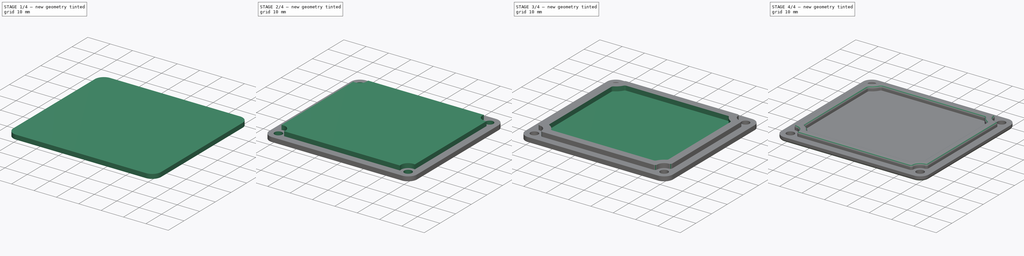
[diagram: build sequence overview — one tinted view per stage of 4, left to right]
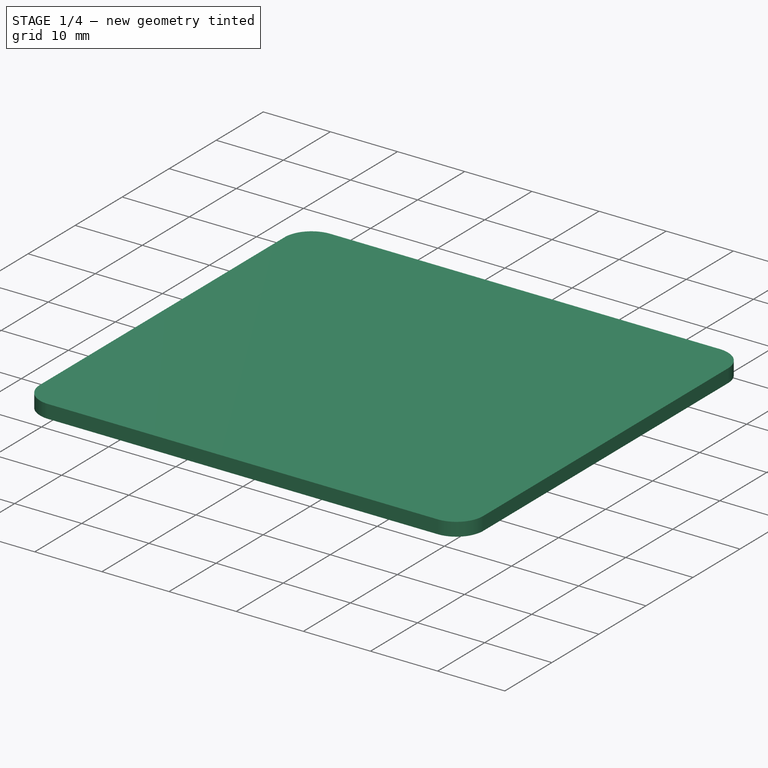
[diagram: stage 1 of 4 — iso view after this stage's code; geometry added in this stage tinted green]
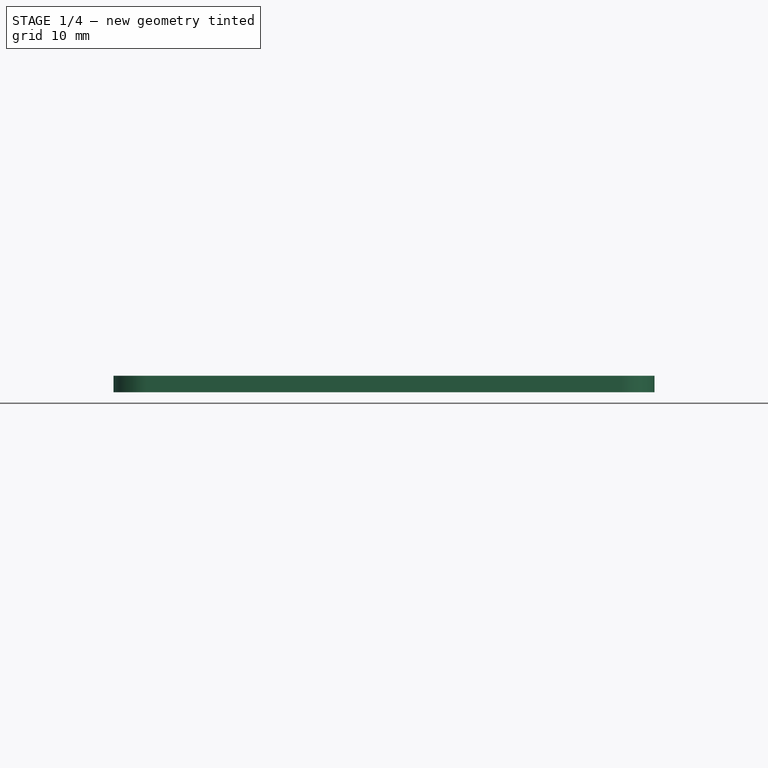
[diagram: stage 1 of 4 — front view after this stage's code; geometry added in this stage tinted green]
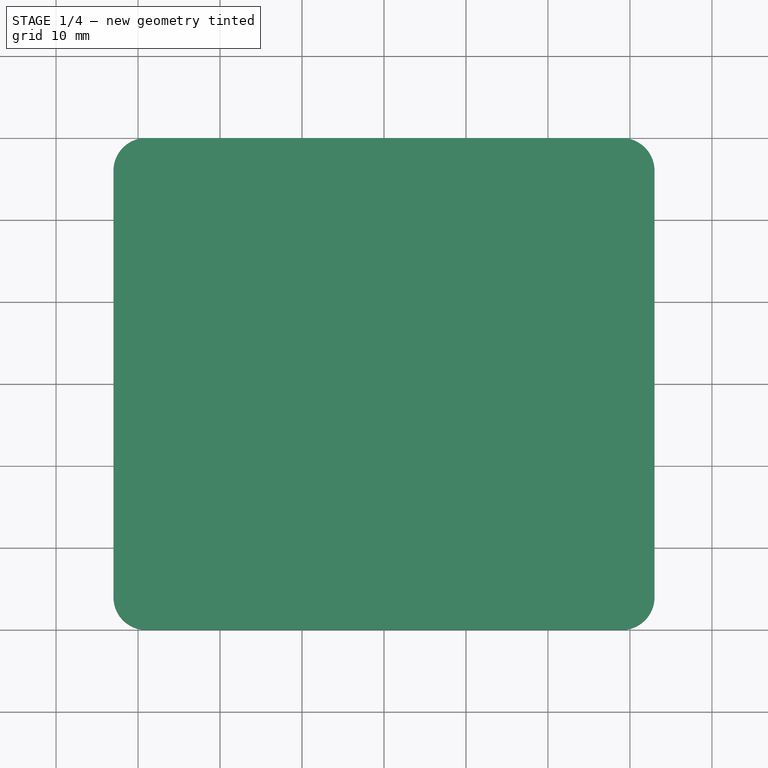
[diagram: stage 1 of 4 — top view after this stage's code; geometry added in this stage tinted green]
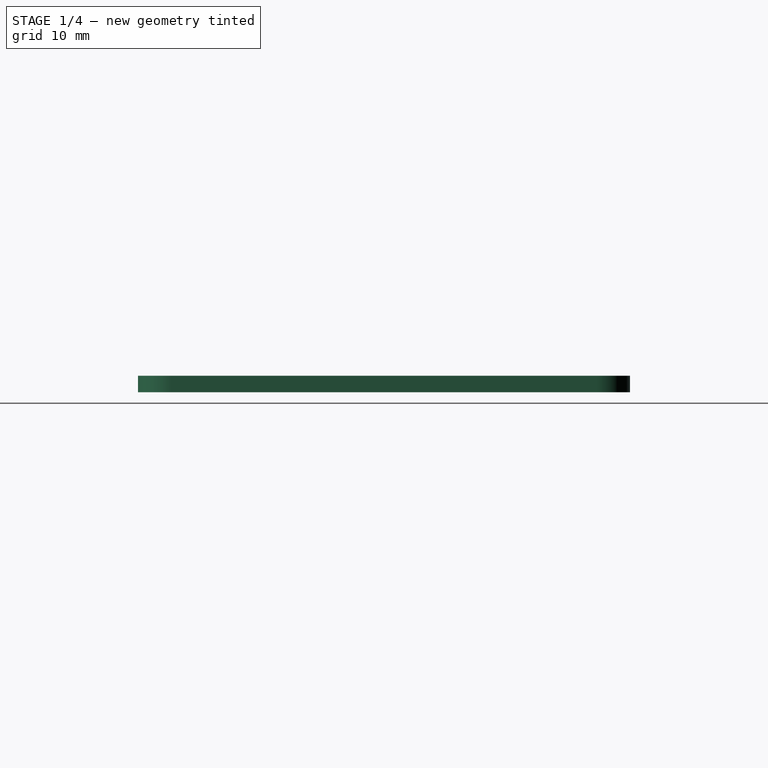
[diagram: stage 1 of 4 — right view after this stage's code; geometry added in this stage tinted green]
FCSTD DOCUMENT  (FreeCAD 0.20R29410 (Git))
Label: terminal box lid
License: All rights reserved
LicenseURL: http://en.wikipedia.org/wiki/All_rights_reserved
objects: PartDesign::Fillet×5, Sketcher::SketchObject×4, PartDesign::Pad×2, PartDesign::Pocket×2, PartDesign::Body×1
note: 23 computed .brp shape members not serialized (recipe doc carries the construction recipe); baked Part::Feature solids carry a one-line shape summary decoded from their .brp

FEATURE [Sketcher::SketchObject] Sketch
  FullyConstrained = true
  MapMode = 5
  Support = -> [XY_Plane]
  sketch-geometry (5):
    g0: LineSegment StartX=-33 StartY=-30 StartZ=0 EndX=-33 EndY=30 EndZ=0
    g1: LineSegment StartX=-33 StartY=30 StartZ=0 EndX=33 EndY=30 EndZ=0
    g2: LineSegment StartX=33 StartY=30 StartZ=0 EndX=33 EndY=-30 EndZ=0
    g3: LineSegment StartX=33 StartY=-30 StartZ=0 EndX=-33 EndY=-30 EndZ=0
    g4: GeomPoint X=0 Y=0 Z=0
  constraints (12):
    c: Coincident(g0,g1)
    c: Coincident(g1,g2)
    c: Coincident(g2,g3)
    c: Coincident(g3,g0)
    c: Horizontal(g1)
    c: Horizontal(g3)
    c: Vertical(g0)
    c: Vertical(g2)
    c: Symmetric(g1,g0,g4)
    c: Coincident(g4,g-1)
    c: DistanceX(g1,g1) = 66
    c: DistanceY(g0,g0) = 60
FEATURE [PartDesign::Pad] Pad  label="Box Size"
  Direction = (0,0,1)
  Length = 2
  Length2 = 10
  Profile = -> Sketch
  ReferenceAxis = -> Sketch [N_Axis]
  Type = 0
FEATURE [PartDesign::Fillet] Fillet
  Base = -> Pad [Edge1,Edge8,Edge5,Edge2]
  BaseFeature = -> Pad
  Radius = 4
  SupportTransform = false
  UseAllEdges = false
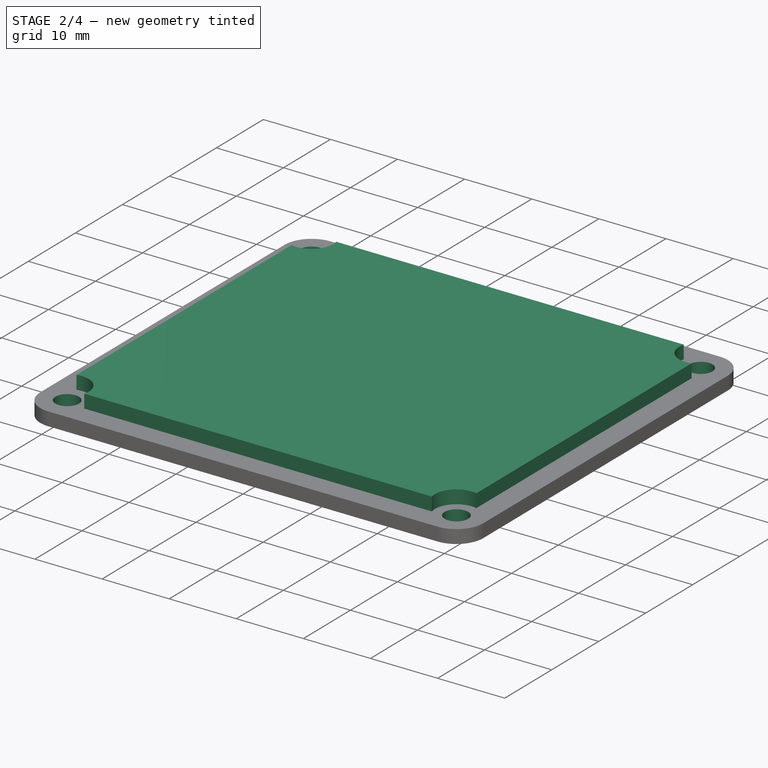
[diagram: stage 2 of 4 — iso view after this stage's code; geometry added in this stage tinted green]
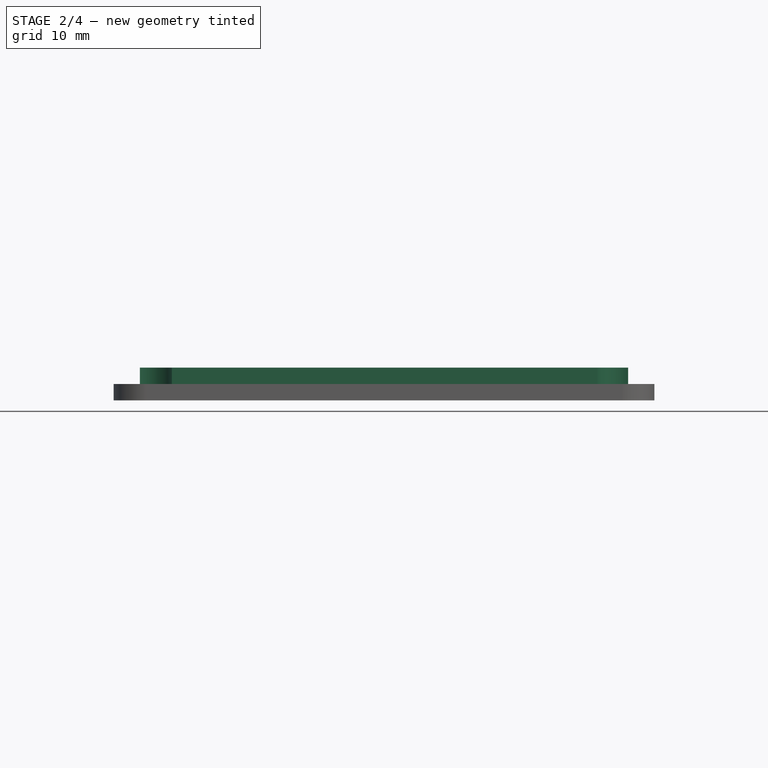
[diagram: stage 2 of 4 — front view after this stage's code; geometry added in this stage tinted green]
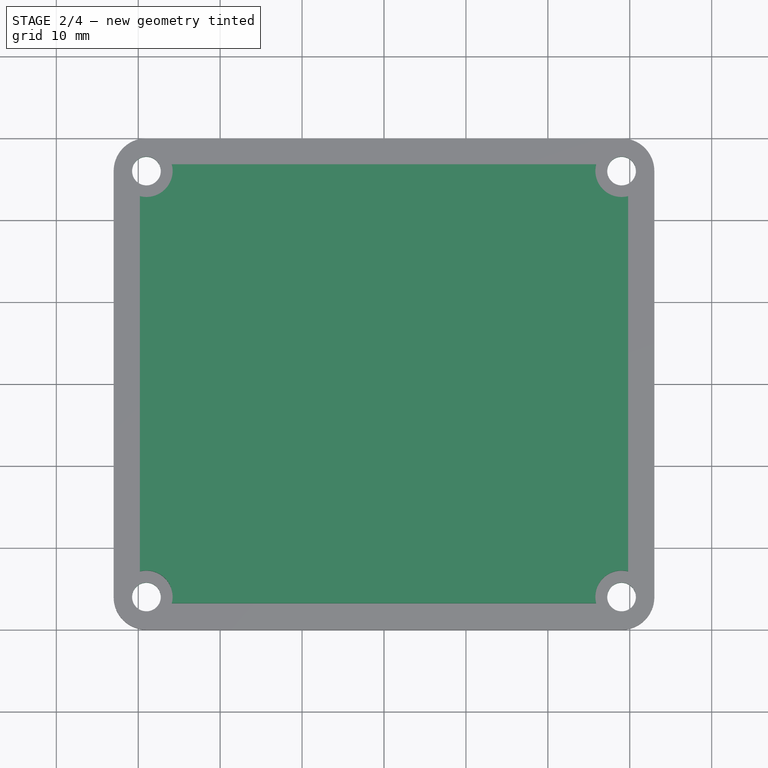
[diagram: stage 2 of 4 — top view after this stage's code; geometry added in this stage tinted green]
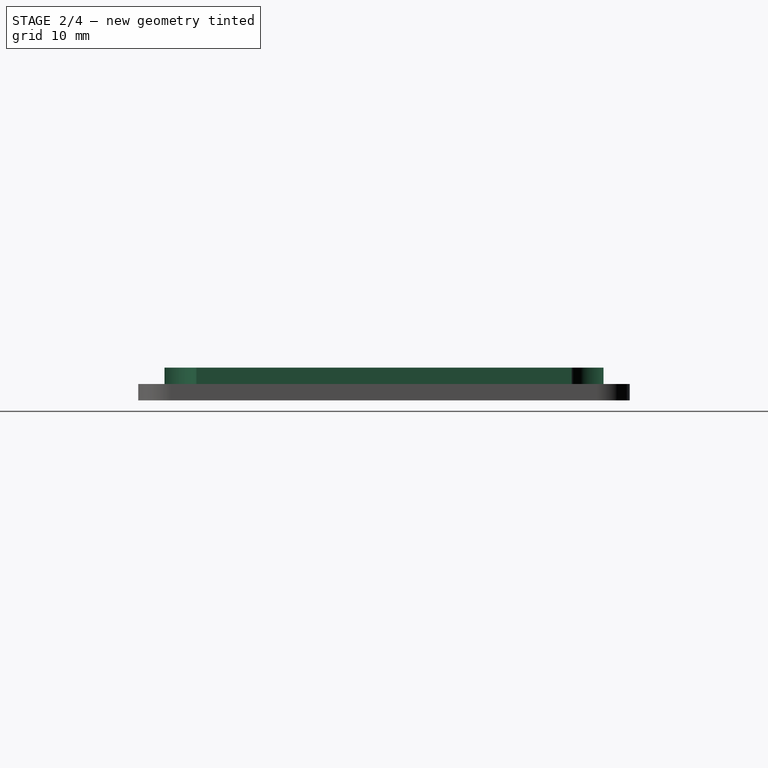
[diagram: stage 2 of 4 — right view after this stage's code; geometry added in this stage tinted green]
FEATURE [Sketcher::SketchObject] Sketch001
  ExternalGeometry = -> [Fillet]
  FullyConstrained = true
  MapMode = 5
  Placement = pos=(0,0,2) rot=(0,0,1;0rad)
  Support = -> [Fillet]
  sketch-geometry (4):
    g0: Circle CenterX=-29 CenterY=26 CenterZ=0 NormalX=0 NormalY=0 NormalZ=1 AngleXU=0 Radius=1.75
    g1: Circle CenterX=29 CenterY=26 CenterZ=0 NormalX=0 NormalY=0 NormalZ=1 AngleXU=0 Radius=1.75
    g2: Circle CenterX=29 CenterY=-26 CenterZ=0 NormalX=0 NormalY=0 NormalZ=1 AngleXU=0 Radius=1.75
    g3: Circle CenterX=-29 CenterY=-26 CenterZ=0 NormalX=0 NormalY=0 NormalZ=1 AngleXU=0 Radius=1.75
  constraints (8):
    c: Coincident(g0,g-3)
    c: Coincident(g1,g-4)
    c: Coincident(g2,g-5)
    c: Coincident(g3,g-6)
    c: Diameter(g0) = 3.5
    c: Diameter(g1) = 3.5
    c: Diameter(g2) = 3.5
    c: Diameter(g3) = 3.5
FEATURE [PartDesign::Pocket] Pocket  label="Mounting Holes"
  BaseFeature = -> Fillet
  Direction = (0,0,-1)
  Length = 0
  Length2 = 5
  Offset = 3
  Profile = -> Sketch001
  ReferenceAxis = -> Sketch001 [N_Axis]
  Type = 1
FEATURE [Sketcher::SketchObject] Sketch002
  ExternalGeometry = -> [Pocket]
  FullyConstrained = true
  MapMode = 5
  Placement = pos=(0,0,2) rot=(0,0,1;0rad)
  Support = -> [Pocket]
  sketch-geometry (8):
    g0: ArcOfCircle CenterX=-29 CenterY=26 CenterZ=0 NormalX=0 NormalY=0 NormalZ=1 AngleXU=0 Radius=3.2 StartAngle=4.45971 EndAngle=6.53587
    g1: ArcOfCircle CenterX=29 CenterY=26 CenterZ=0 NormalX=0 NormalY=0 NormalZ=1 AngleXU=0 Radius=3.2 StartAngle=2.88891 EndAngle=4.96507
    g2: ArcOfCircle CenterX=29 CenterY=-26 CenterZ=0 NormalX=0 NormalY=0 NormalZ=1 AngleXU=0 Radius=3.2 StartAngle=1.31812 EndAngle=3.39427
    g3: ArcOfCircle CenterX=-29 CenterY=-26 CenterZ=0 NormalX=0 NormalY=0 NormalZ=1 AngleXU=0 Radius=3.2 StartAngle=6.03051 EndAngle=8.10666
    g4: LineSegment StartX=-29.8 StartY=22.9016 StartZ=0 EndX=-29.8 EndY=-22.9016 EndZ=0
    g5: LineSegment StartX=-25.9016 StartY=26.8 StartZ=0 EndX=25.9016 EndY=26.8 EndZ=0
    g6: LineSegment StartX=29.8 StartY=22.9016 StartZ=0 EndX=29.8 EndY=-22.9016 EndZ=0
    g7: LineSegment StartX=-25.9016 StartY=-26.8 StartZ=0 EndX=25.9016 EndY=-26.8 EndZ=0
  constraints (24):
    c: Coincident(g0,g-6)
    c: Coincident(g1,g-3)
    c: Coincident(g2,g-4)
    c: Coincident(g3,g-5)
    c: Vertical(g4)
    c: Horizontal(g5)
    c: Vertical(g6)
    c: Horizontal(g7)
    c: Coincident(g2,g7)
    c: Coincident(g2,g6)
    c: Coincident(g1,g6)
    c: Coincident(g1,g5)
    c: Coincident(g0,g5)
    c: Coincident(g0,g4)
    c: Coincident(g3,g4)
    c: Coincident(g3,g7)
    c: Diameter(g0) = 6.4
    c: Diameter(g1) = 6.4
    c: Diameter(g2) = 6.4
    c: Diameter(g3) = 6.4
    c: DistanceX(g2,g-10) = 3.2
    c: DistanceX(g-8,g3) = 3.2
    c: DistanceY(g0,g-7) = 3.2
    c: DistanceY(g-9,g3) = 3.2
FEATURE [PartDesign::Pad] Pad001
  BaseFeature = -> Pocket
  Direction = (0,0,1)
  Length = 2
  Length2 = 10
  Profile = -> Sketch002
  ReferenceAxis = -> Sketch002 [N_Axis]
  Type = 0
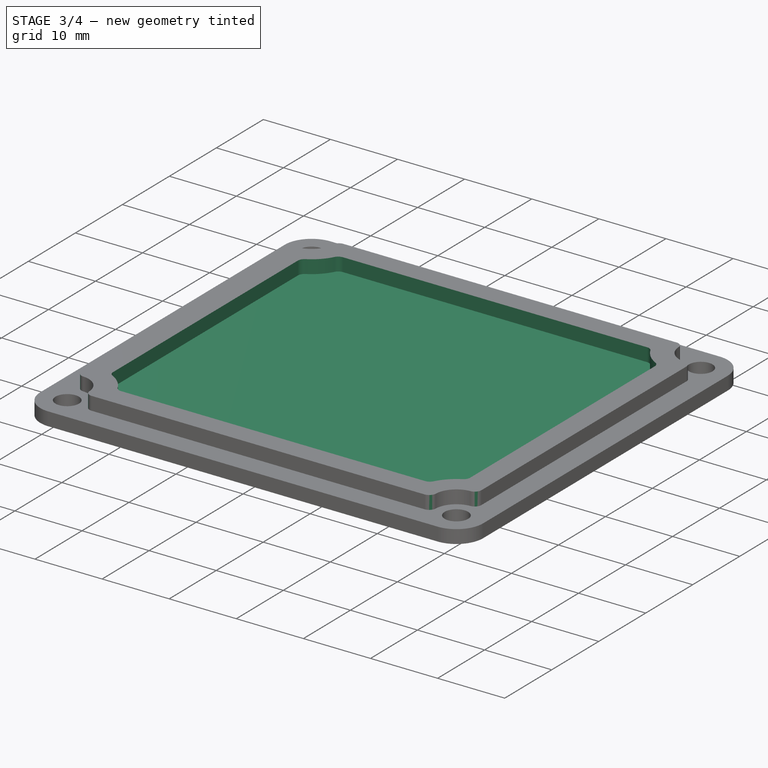
[diagram: stage 3 of 4 — iso view after this stage's code; geometry added in this stage tinted green]
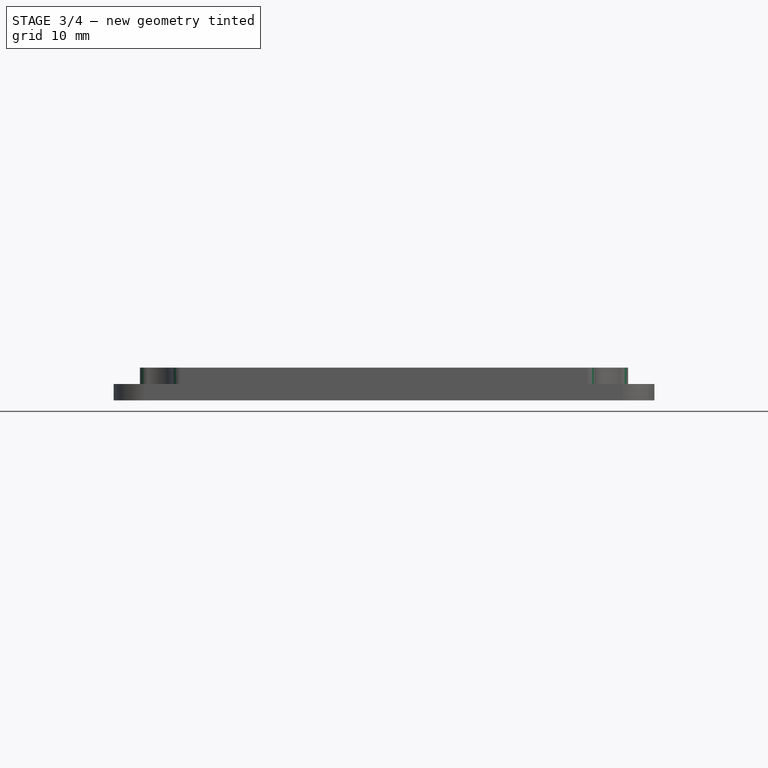
[diagram: stage 3 of 4 — front view after this stage's code; geometry added in this stage tinted green]
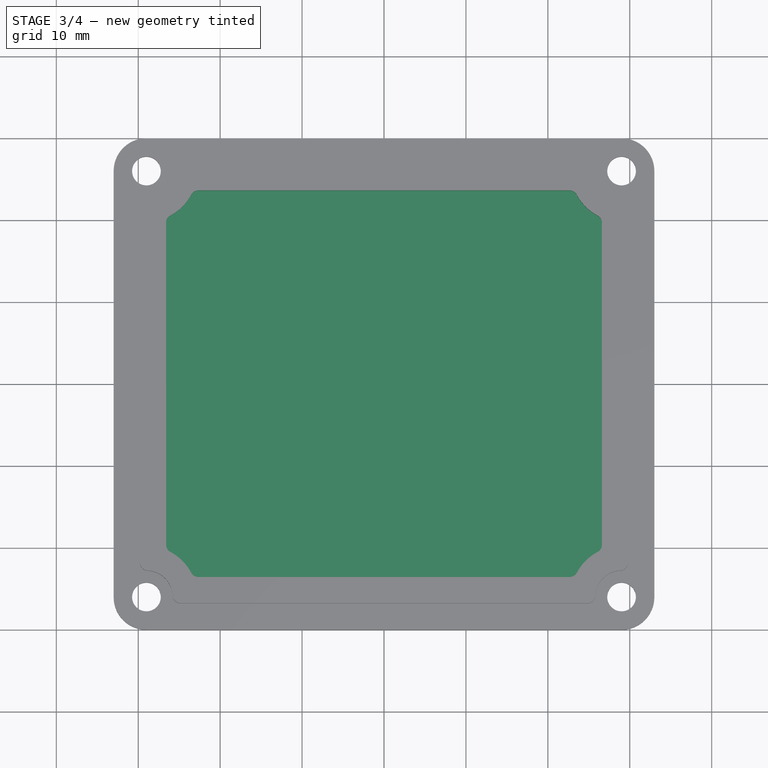
[diagram: stage 3 of 4 — top view after this stage's code; geometry added in this stage tinted green]
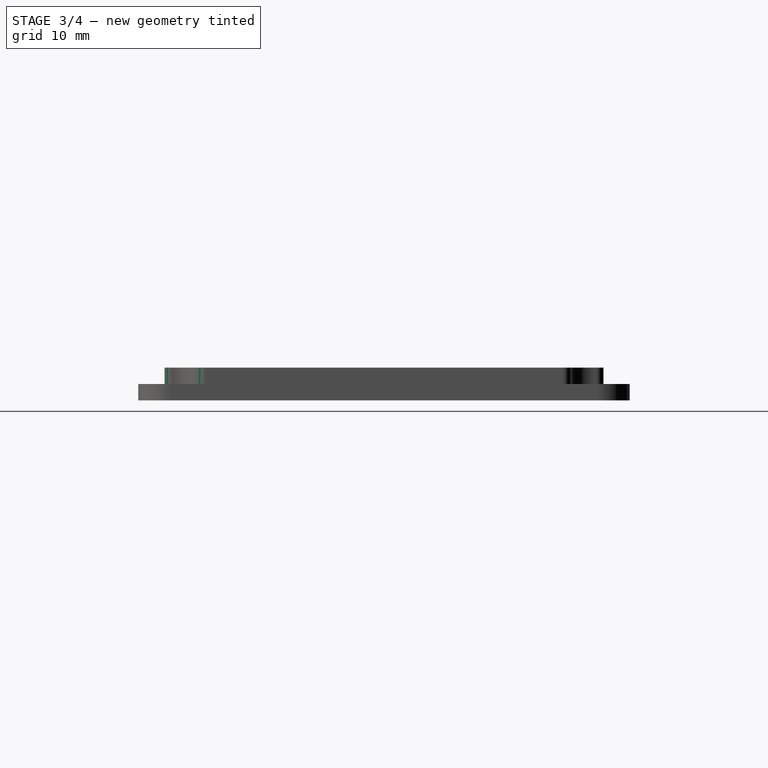
[diagram: stage 3 of 4 — right view after this stage's code; geometry added in this stage tinted green]
FEATURE [Sketcher::SketchObject] Sketch003
  ExternalGeometry = -> [Pad001]
  FullyConstrained = true
  MapMode = 5
  Placement = pos=(0,0,4) rot=(0,0,1;0rad)
  Support = -> [Pad001]
  sketch-geometry (8):
    g0: ArcOfCircle CenterX=-29 CenterY=26 CenterZ=0 NormalX=0 NormalY=0 NormalZ=1 AngleXU=0 Radius=6.2 StartAngle=5.10987 EndAngle=5.8857
    g1: ArcOfCircle CenterX=-29 CenterY=-26 CenterZ=0 NormalX=0 NormalY=0 NormalZ=1 AngleXU=0 Radius=6.2 StartAngle=0.397481 EndAngle=1.17332
    g2: ArcOfCircle CenterX=29 CenterY=-26 CenterZ=0 NormalX=0 NormalY=0 NormalZ=1 AngleXU=0 Radius=6.2 StartAngle=1.96828 EndAngle=2.74411
    g3: ArcOfCircle CenterX=29 CenterY=26 CenterZ=0 NormalX=0 NormalY=0 NormalZ=1 AngleXU=0 Radius=6.2 StartAngle=3.53907 EndAngle=4.31491
    g4: LineSegment StartX=-26.6 StartY=20.2834 StartZ=0 EndX=-26.6 EndY=-20.2834 EndZ=0
    g5: LineSegment StartX=-23.2834 StartY=-23.6 StartZ=0 EndX=23.2834 EndY=-23.6 EndZ=0
    g6: LineSegment StartX=26.6 StartY=-20.2834 StartZ=0 EndX=26.6 EndY=20.2834 EndZ=0
    g7: LineSegment StartX=23.2834 StartY=23.6 StartZ=0 EndX=-23.2834 EndY=23.6 EndZ=0
  constraints (24):
    c: Coincident(g0,g-6)
    c: Coincident(g1,g-5)
    c: Coincident(g2,g-4)
    c: Coincident(g3,g-3)
    c: Vertical(g4)
    c: Horizontal(g5)
    c: Vertical(g6)
    c: Horizontal(g7)
    c: Coincident(g0,g4)
    c: Coincident(g0,g7)
    c: Coincident(g3,g7)
    c: Coincident(g3,g6)
    c: Coincident(g2,g6)
    c: Coincident(g2,g5)
    c: Coincident(g1,g4)
    c: Coincident(g1,g5)
    c: Diameter(g0) = 12.4
    c: Diameter(g3) = 12.4
    c: Diameter(g2) = 12.4
    c: Diameter(g1) = 12.4
    c: DistanceX(g-7,g0) = 6.4
    c: DistanceX(g3,g-9) = 6.4
    c: DistanceY(g3,g-8) = 6.4
    c: DistanceY(g-10,g2) = 6.4
FEATURE [PartDesign::Pocket] Pocket001
  BaseFeature = -> Pad001
  Direction = (0,0,-1)
  Length = 0
  Length2 = 5
  Profile = -> Sketch003
  ReferenceAxis = -> Sketch003 [N_Axis]
  Type = 3
  UpToFace = -> Pad001 [Face5]
FEATURE [PartDesign::Fillet] Fillet001
  Base = -> Pocket001 [Edge54,Edge56,Edge58,Edge45,Edge52,Edge50,Edge48,Edge46]
  BaseFeature = -> Pocket001
  Radius = 1
  SupportTransform = false
  UseAllEdges = false
FEATURE [PartDesign::Fillet] Fillet002
  Base = -> Fillet001 [Edge105,Edge102,Edge101,Edge98,Edge97,Edge93,Edge106,Edge95]
  BaseFeature = -> Fillet001
  Radius = 1
  SupportTransform = false
  UseAllEdges = false
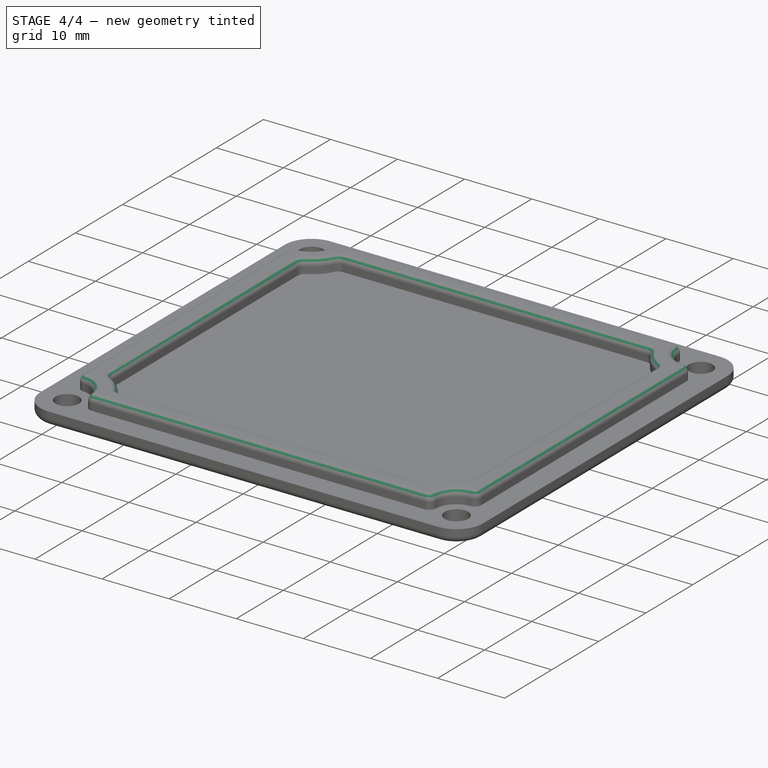
[diagram: stage 4 of 4 — iso view after this stage's code; geometry added in this stage tinted green]
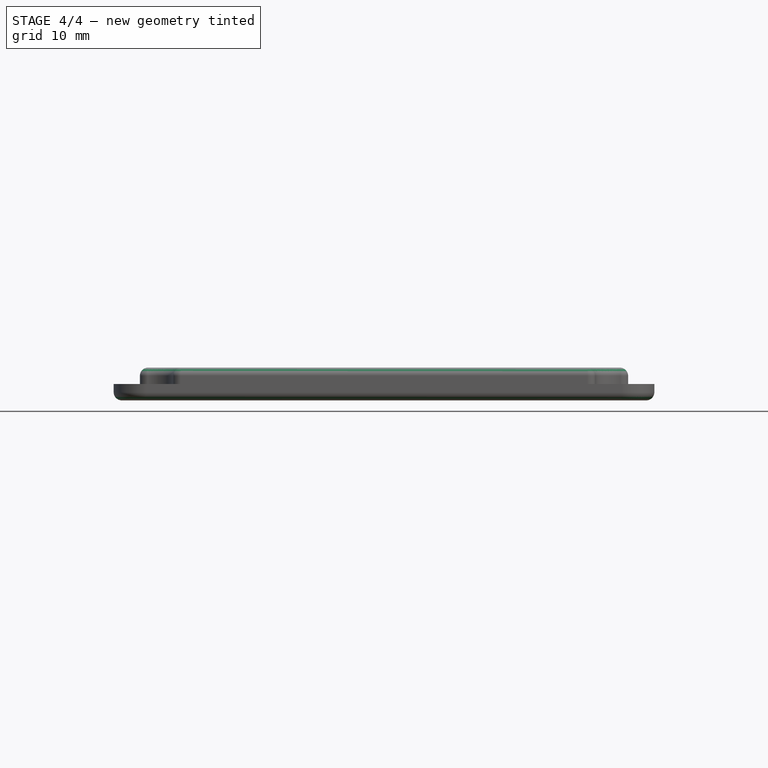
[diagram: stage 4 of 4 — front view after this stage's code; geometry added in this stage tinted green]
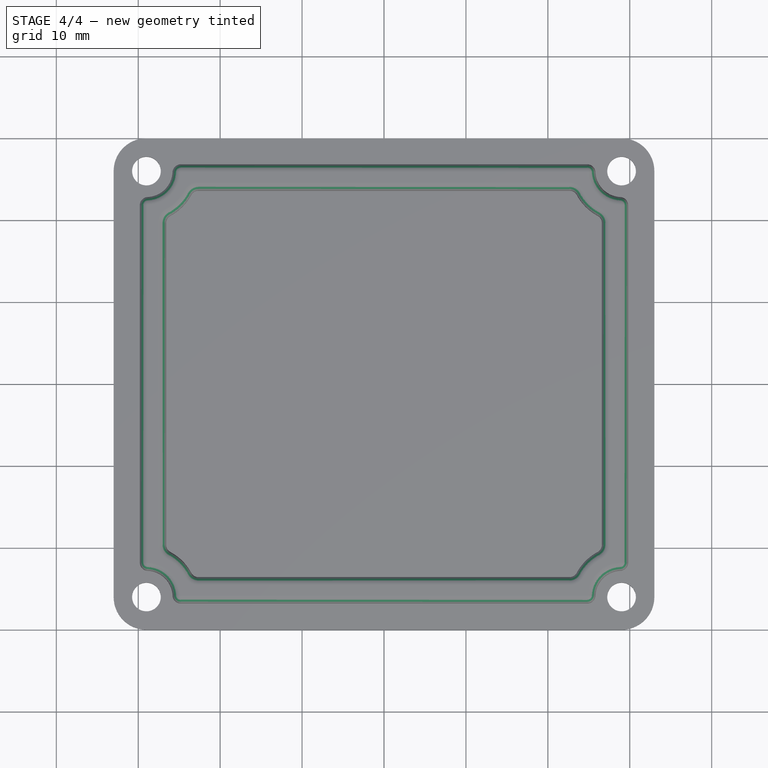
[diagram: stage 4 of 4 — top view after this stage's code; geometry added in this stage tinted green]
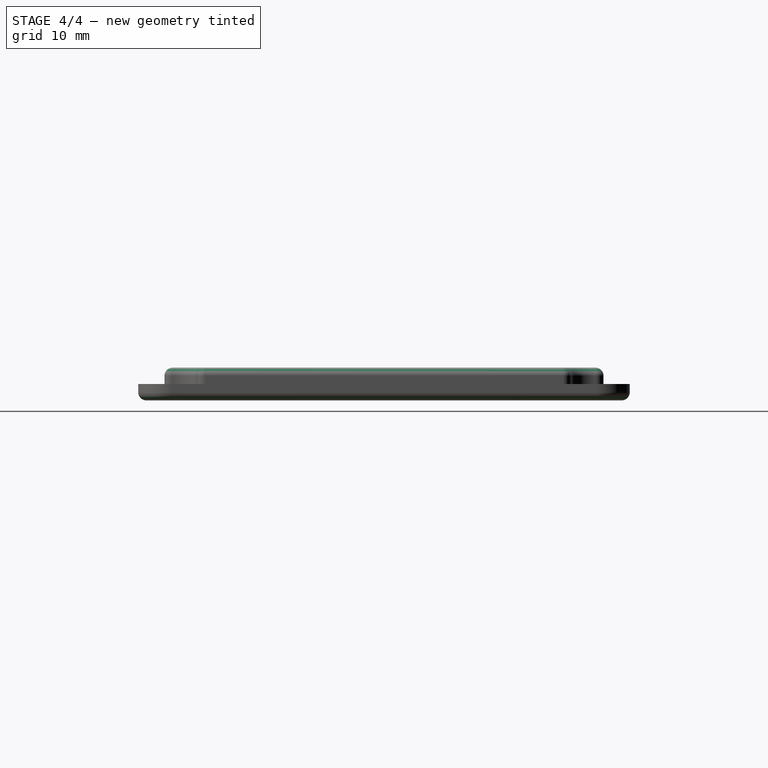
[diagram: stage 4 of 4 — right view after this stage's code; geometry added in this stage tinted green]
FEATURE [PartDesign::Fillet] Fillet003
  Base = -> Fillet002 [Face1]
  BaseFeature = -> Fillet002
  Radius = 1
  SupportTransform = false
  UseAllEdges = false
FEATURE [PartDesign::Fillet] Fillet004
  Base = -> Fillet003 [Edge180]
  BaseFeature = -> Fillet003
  Radius = 1
  SupportTransform = false
  UseAllEdges = false
FEATURE [PartDesign::Body] Body
  Group = -> [Sketch,Pad,Fillet,Sketch001,Pocket,Sketch002,Pad001,Sketch003,Pocket001,Fillet001,Fillet002,Fillet003,Fillet004]
  Origin = -> Origin
  Tip = -> Fillet004
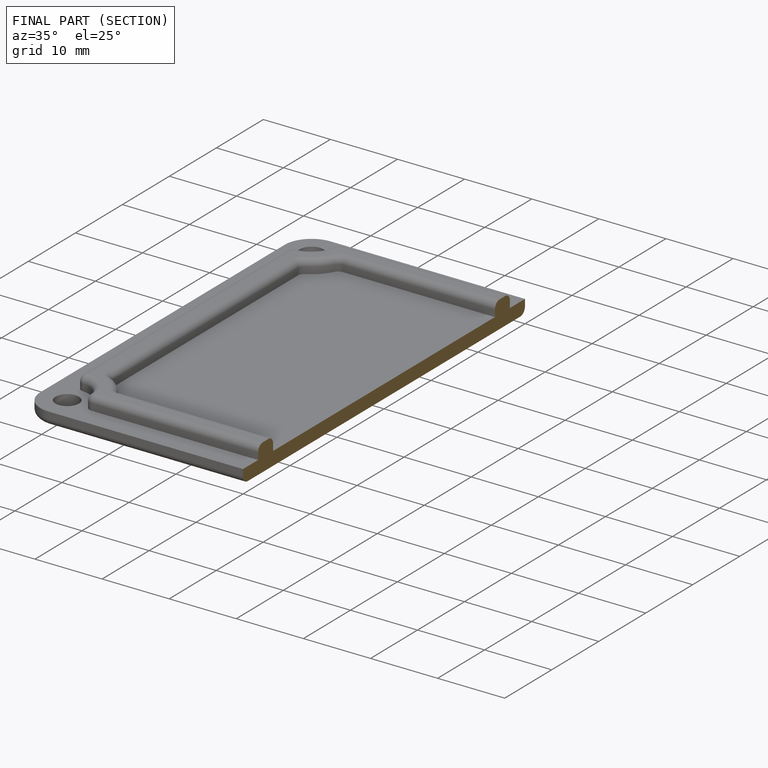
[diagram: finished part — half-section view (interior)]
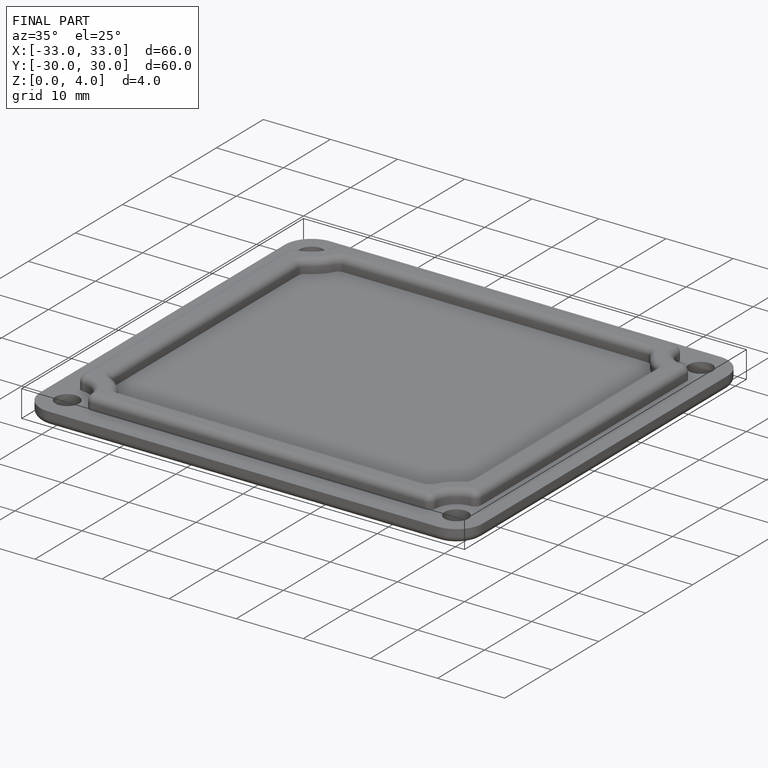
[diagram: finished part — iso view with bounding-box wireframe]
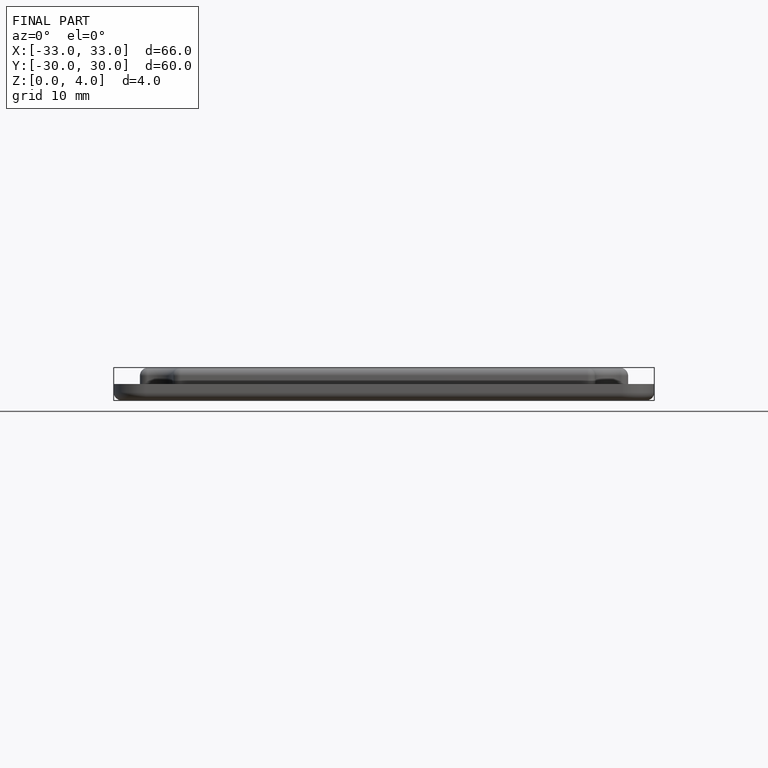
[diagram: finished part — front view with bounding-box wireframe]
